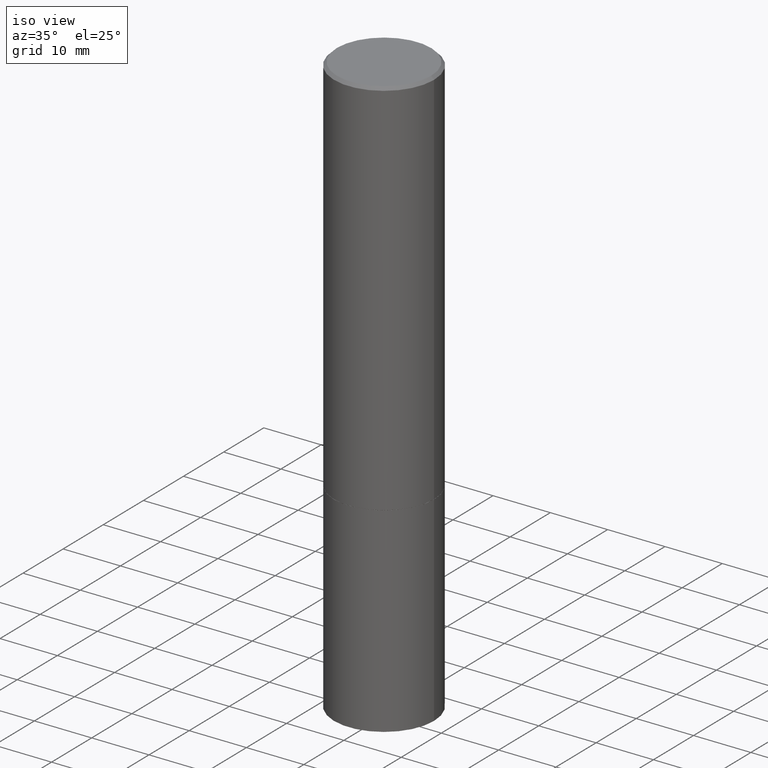
[diagram: clean part render]
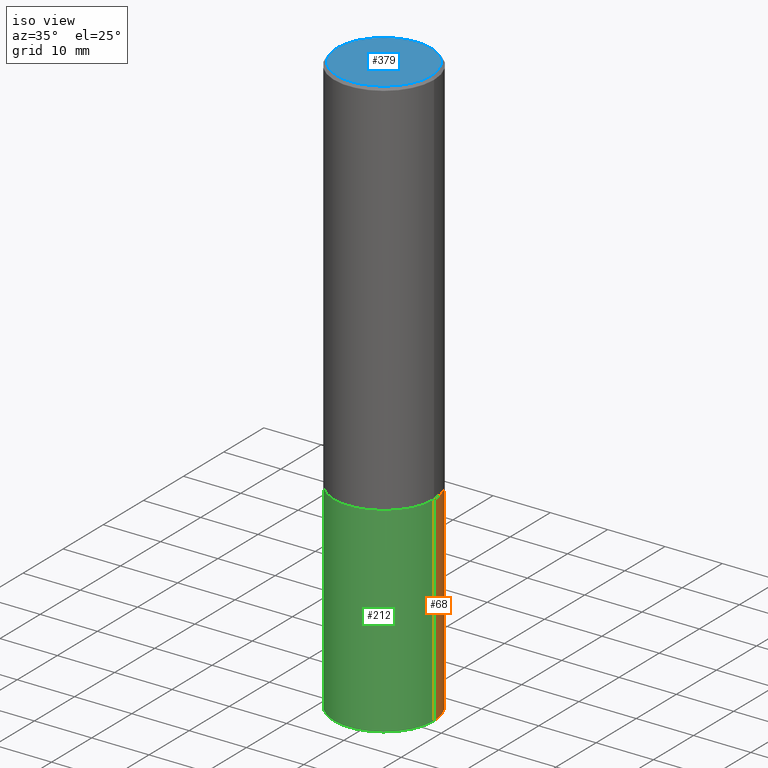
[diagram: same view with three faces highlighted in distinct colors, each labeled with its STEP entity id]
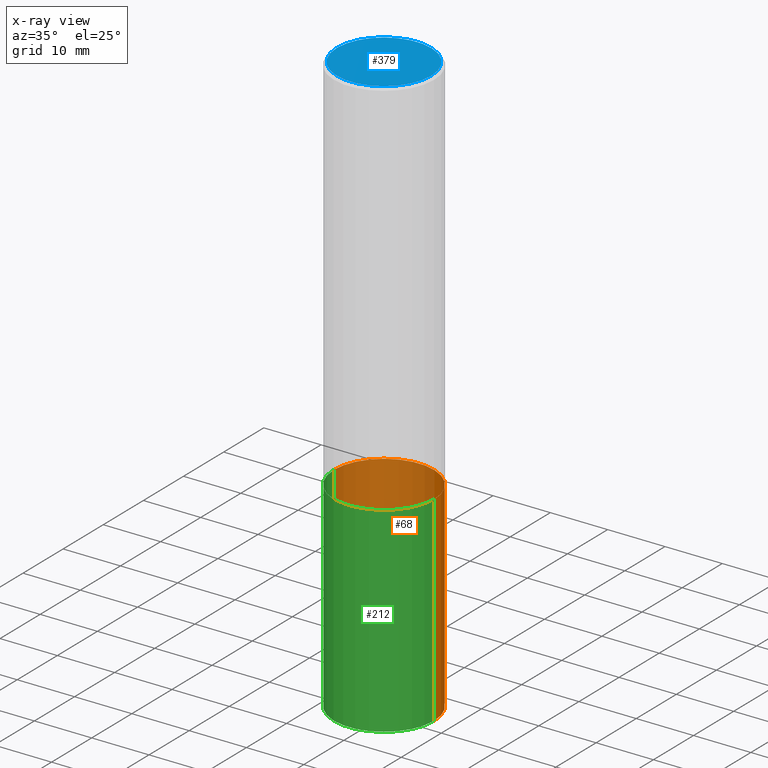
[diagram: x-ray of the same camera — body ghosted, the three highlighted faces saturated]
A machine part, iso view with three faces highlighted in distinct colors.
The next image is the same camera in x-ray (body ghosted, the three faces saturated) — at least one of them is partly hidden behind the body in this view.
Their STEP definitions:

[orange] entity #68 — the highlighted cylindrical surface (partial cylindrical patch) has radius 8.7312 mm, axis along (-0, 0, 1).
#4 = CARTESIAN_POINT ( 'NONE',  ( 9.781875224740546387E-29, -1.396592535537258233E-14, -4.000000000000000000 ) ) ;
#6 = DIRECTION ( 'NONE',  ( 1.000000000000000000, -6.982962677686269077E-15, 0.000000000000000000 ) ) ;
#47 = DIRECTION ( 'NONE',  ( -2.445468806185136597E-29, 3.491481338843145583E-15, 1.000000000000000000 ) ) ;
#49 = CIRCLE ( 'NONE', #236, 0.3437500000000000000 ) ;
#68 = ADVANCED_FACE ( 'NONE', ( #200 ), #318, .T. ) ;
#76 = CARTESIAN_POINT ( 'NONE',  ( 0.3437500000000000000, -2.400393420454653787E-15, 1.676185766679852859E-29 ) ) ;
#79 = CARTESIAN_POINT ( 'NONE',  ( 0.000000000000000000, 0.000000000000000000, 0.000000000000000000 ) ) ;
#92 = AXIS2_PLACEMENT_3D ( 'NONE', #116, #210, #147 ) ;
#106 = EDGE_CURVE ( 'NONE', #204, #152, #349, .T. ) ;
#114 = LINE ( 'NONE', #181, #199 ) ;
#116 = CARTESIAN_POINT ( 'NONE',  ( 6.419355616235983567E-29, -9.165138514463256612E-15, -2.625000000000000000 ) ) ;
#120 = CARTESIAN_POINT ( 'NONE',  ( 0.3437500000000006661, -1.632422154210654946E-14, -4.000000000000000000 ) ) ;
#125 = ORIENTED_EDGE ( 'NONE', *, *, #175, .T. ) ;
#147 = DIRECTION ( 'NONE',  ( 1.000000000000000000, -6.982962677686269077E-15, 0.000000000000000000 ) ) ;
#152 = VERTEX_POINT ( 'NONE', #187 ) ;
#160 = CARTESIAN_POINT ( 'NONE',  ( -0.3437500000000006661, -1.156553193491792420E-14, -4.000000000000000000 ) ) ;
#175 = EDGE_CURVE ( 'NONE', #204, #333, #49, .T. ) ;
#181 = CARTESIAN_POINT ( 'NONE',  ( -0.3437500000000000000, 2.442490654175344389E-15, -1.690883937275123635E-29 ) ) ;
#187 = CARTESIAN_POINT ( 'NONE',  ( 0.3437500000000000000, -1.156553193491791158E-14, -2.625000000000000000 ) ) ;
#193 = EDGE_CURVE ( 'NONE', #333, #365, #114, .T. ) ;
#199 = VECTOR ( 'NONE', #243, 39.37007874015748143 ) ;
#200 = FACE_OUTER_BOUND ( 'NONE', #296, .T. ) ;
#204 = VERTEX_POINT ( 'NONE', #120 ) ;
#210 = DIRECTION ( 'NONE',  ( -2.445468806185136597E-29, 3.491481338843145583E-15, 1.000000000000000000 ) ) ;
#236 = AXIS2_PLACEMENT_3D ( 'NONE', #4, #359, #6 ) ;
#243 = DIRECTION ( 'NONE',  ( -2.445468806185136877E-29, 3.491481338843145188E-15, 1.000000000000000000 ) ) ;
#294 = VECTOR ( 'NONE', #385, 39.37007874015748143 ) ;
#296 = EDGE_LOOP ( 'NONE', ( #125, #358, #368, #300 ) ) ;
#299 = CARTESIAN_POINT ( 'NONE',  ( -0.3437500000000000000, -9.123041280742575082E-15, -2.625000000000000000 ) ) ;
#300 = ORIENTED_EDGE ( 'NONE', *, *, #106, .F. ) ;
#318 = CYLINDRICAL_SURFACE ( 'NONE', #363, 0.3437500000000000000 ) ;
#321 = DIRECTION ( 'NONE',  ( 1.000000000000000000, -6.982962677686265922E-15, 4.876176775795935793E-29 ) ) ;
#333 = VERTEX_POINT ( 'NONE', #160 ) ;
#340 = CIRCLE ( 'NONE', #92, 0.3437500000000000000 ) ;
#348 = EDGE_CURVE ( 'NONE', #152, #365, #340, .T. ) ;
#349 = LINE ( 'NONE', #76, #294 ) ;
#358 = ORIENTED_EDGE ( 'NONE', *, *, #193, .T. ) ;
#359 = DIRECTION ( 'NONE',  ( -2.445468806185136597E-29, 3.491481338843145583E-15, 1.000000000000000000 ) ) ;
#363 = AXIS2_PLACEMENT_3D ( 'NONE', #79, #47, #321 ) ;
#365 = VERTEX_POINT ( 'NONE', #299 ) ;
#368 = ORIENTED_EDGE ( 'NONE', *, *, #348, .F. ) ;
#385 = DIRECTION ( 'NONE',  ( -2.445468806185136877E-29, 3.491481338843145188E-15, 1.000000000000000000 ) ) ;

[blue] entity #379 — the highlighted planar face has unit normal (0, -0, -1).
#32 = DIRECTION ( 'NONE',  ( 2.438088387897960049E-29, -3.491481338843145188E-15, -1.000000000000000000 ) ) ;
#51 = EDGE_CURVE ( 'NONE', #70, #189, #355, .T. ) ;
#66 = DIRECTION ( 'NONE',  ( -1.000000000000000000, 6.982962677686265922E-15, -4.876176775795935793E-29 ) ) ;
#70 = VERTEX_POINT ( 'NONE', #235 ) ;
#71 = CIRCLE ( 'NONE', #238, 0.3237499999999996492 ) ;
#78 = EDGE_CURVE ( 'NONE', #189, #70, #71, .T. ) ;
#85 = AXIS2_PLACEMENT_3D ( 'NONE', #306, #32, #66 ) ;
#132 = ORIENTED_EDGE ( 'NONE', *, *, #51, .T. ) ;
#137 = DIRECTION ( 'NONE',  ( -2.445468806185136597E-29, 3.491481338843145583E-15, 1.000000000000000000 ) ) ;
#144 = AXIS2_PLACEMENT_3D ( 'NONE', #205, #137, #350 ) ;
#149 = ORIENTED_EDGE ( 'NONE', *, *, #78, .T. ) ;
#176 = DIRECTION ( 'NONE',  ( -2.445468806185136597E-29, 3.491481338843145583E-15, 1.000000000000000000 ) ) ;
#189 = VERTEX_POINT ( 'NONE', #328 ) ;
#205 = CARTESIAN_POINT ( 'NONE',  ( -1.043851414335219820E-46, 1.490343170380447200E-32, 4.268512490100411279E-18 ) ) ;
#219 = FACE_OUTER_BOUND ( 'NONE', #360, .T. ) ;
#235 = CARTESIAN_POINT ( 'NONE',  ( -0.3237499999999996492, 2.295648980289358051E-15, 4.268512490084478446E-18 ) ) ;
#238 = AXIS2_PLACEMENT_3D ( 'NONE', #260, #176, #293 ) ;
#260 = CARTESIAN_POINT ( 'NONE',  ( -1.043851414335219820E-46, 1.490343170380447200E-32, 4.268512490100411279E-18 ) ) ;
#293 = DIRECTION ( 'NONE',  ( 1.000000000000000000, -6.982962677686266711E-15, 4.876157412475881652E-29 ) ) ;
#306 = CARTESIAN_POINT ( 'NONE',  ( 2.260734166900926402E-15, 0.3237499999999996492, -1.128232827205417129E-15 ) ) ;
#328 = CARTESIAN_POINT ( 'NONE',  ( 0.3237499999999996492, -2.324606020144678320E-15, 4.268512490116445031E-18 ) ) ;
#350 = DIRECTION ( 'NONE',  ( 1.000000000000000000, -6.982962677686266711E-15, 4.876157412475881652E-29 ) ) ;
#355 = CIRCLE ( 'NONE', #144, 0.3237499999999996492 ) ;
#360 = EDGE_LOOP ( 'NONE', ( #132, #149 ) ) ;
#372 = PLANE ( 'NONE',  #85 ) ;
#379 = ADVANCED_FACE ( 'NONE', ( #219 ), #372, .F. ) ;

[green] entity #212 — the highlighted cylindrical surface (partial cylindrical patch) has radius 8.7312 mm, axis along (-0, 0, 1).
#5 = DIRECTION ( 'NONE',  ( -2.445468806185136597E-29, 3.491481338843145583E-15, 1.000000000000000000 ) ) ;
#21 = CARTESIAN_POINT ( 'NONE',  ( 9.781875224740546387E-29, -1.396592535537258233E-14, -4.000000000000000000 ) ) ;
#22 = AXIS2_PLACEMENT_3D ( 'NONE', #275, #5, #216 ) ;
#65 = ORIENTED_EDGE ( 'NONE', *, *, #231, .T. ) ;
#76 = CARTESIAN_POINT ( 'NONE',  ( 0.3437500000000000000, -2.400393420454653787E-15, 1.676185766679852859E-29 ) ) ;
#87 = CYLINDRICAL_SURFACE ( 'NONE', #162, 0.3437500000000000000 ) ;
#95 = ORIENTED_EDGE ( 'NONE', *, *, #193, .F. ) ;
#106 = EDGE_CURVE ( 'NONE', #204, #152, #349, .T. ) ;
#114 = LINE ( 'NONE', #181, #199 ) ;
#119 = CIRCLE ( 'NONE', #170, 0.3437500000000000000 ) ;
#120 = CARTESIAN_POINT ( 'NONE',  ( 0.3437500000000006661, -1.632422154210654946E-14, -4.000000000000000000 ) ) ;
#146 = DIRECTION ( 'NONE',  ( -2.445468806185136597E-29, 3.491481338843145583E-15, 1.000000000000000000 ) ) ;
#152 = VERTEX_POINT ( 'NONE', #187 ) ;
#160 = CARTESIAN_POINT ( 'NONE',  ( -0.3437500000000006661, -1.156553193491792420E-14, -4.000000000000000000 ) ) ;
#162 = AXIS2_PLACEMENT_3D ( 'NONE', #362, #326, #213 ) ;
#170 = AXIS2_PLACEMENT_3D ( 'NONE', #21, #146, #270 ) ;
#181 = CARTESIAN_POINT ( 'NONE',  ( -0.3437500000000000000, 2.442490654175344389E-15, -1.690883937275123635E-29 ) ) ;
#187 = CARTESIAN_POINT ( 'NONE',  ( 0.3437500000000000000, -1.156553193491791158E-14, -2.625000000000000000 ) ) ;
#191 = ORIENTED_EDGE ( 'NONE', *, *, #308, .F. ) ;
#193 = EDGE_CURVE ( 'NONE', #333, #365, #114, .T. ) ;
#194 = CIRCLE ( 'NONE', #22, 0.3437500000000000000 ) ;
#199 = VECTOR ( 'NONE', #243, 39.37007874015748143 ) ;
#204 = VERTEX_POINT ( 'NONE', #120 ) ;
#211 = EDGE_LOOP ( 'NONE', ( #95, #65, #223, #191 ) ) ;
#212 = ADVANCED_FACE ( 'NONE', ( #276 ), #87, .T. ) ;
#213 = DIRECTION ( 'NONE',  ( 1.000000000000000000, -6.982962677686265922E-15, 4.876176775795935793E-29 ) ) ;
#216 = DIRECTION ( 'NONE',  ( 1.000000000000000000, -6.982962677686269077E-15, 0.000000000000000000 ) ) ;
#223 = ORIENTED_EDGE ( 'NONE', *, *, #106, .T. ) ;
#231 = EDGE_CURVE ( 'NONE', #333, #204, #119, .T. ) ;
#243 = DIRECTION ( 'NONE',  ( -2.445468806185136877E-29, 3.491481338843145188E-15, 1.000000000000000000 ) ) ;
#270 = DIRECTION ( 'NONE',  ( 1.000000000000000000, -6.982962677686269077E-15, 0.000000000000000000 ) ) ;
#275 = CARTESIAN_POINT ( 'NONE',  ( 6.419355616235983567E-29, -9.165138514463256612E-15, -2.625000000000000000 ) ) ;
#276 = FACE_OUTER_BOUND ( 'NONE', #211, .T. ) ;
#294 = VECTOR ( 'NONE', #385, 39.37007874015748143 ) ;
#299 = CARTESIAN_POINT ( 'NONE',  ( -0.3437500000000000000, -9.123041280742575082E-15, -2.625000000000000000 ) ) ;
#308 = EDGE_CURVE ( 'NONE', #365, #152, #194, .T. ) ;
#326 = DIRECTION ( 'NONE',  ( -2.445468806185136597E-29, 3.491481338843145583E-15, 1.000000000000000000 ) ) ;
#333 = VERTEX_POINT ( 'NONE', #160 ) ;
#349 = LINE ( 'NONE', #76, #294 ) ;
#362 = CARTESIAN_POINT ( 'NONE',  ( 0.000000000000000000, 0.000000000000000000, 0.000000000000000000 ) ) ;
#365 = VERTEX_POINT ( 'NONE', #299 ) ;
#385 = DIRECTION ( 'NONE',  ( -2.445468806185136877E-29, 3.491481338843145188E-15, 1.000000000000000000 ) ) ;